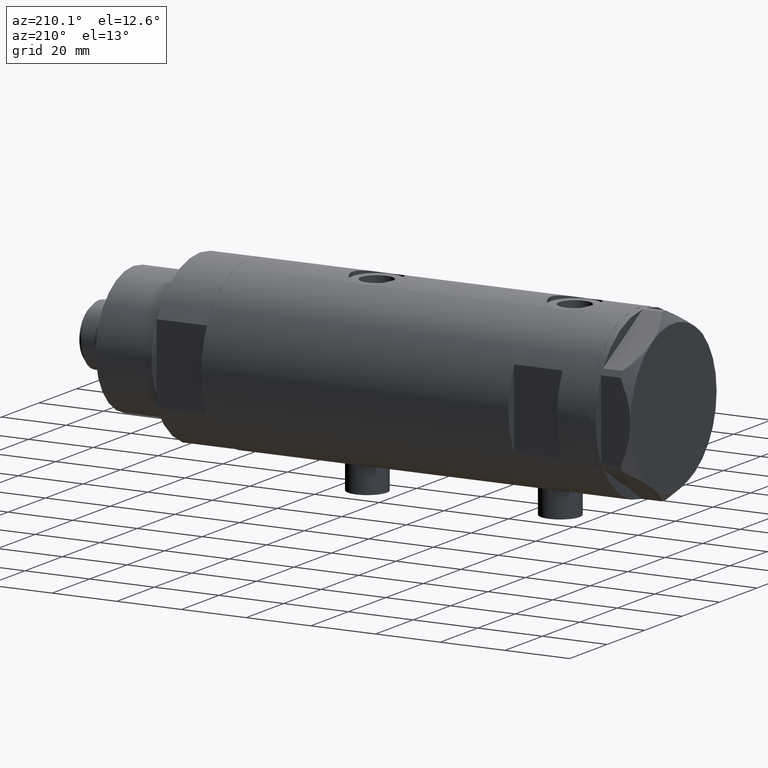
[diagram: clean part render]
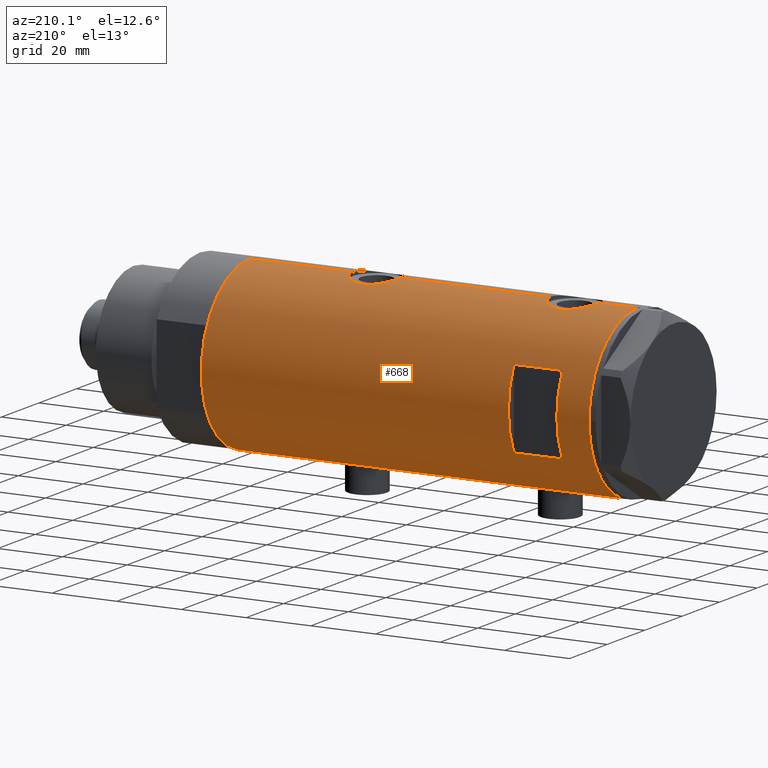
[diagram: same view with one face highlighted and labeled with its STEP entity id]
A machine part, auxiliary view. The second image highlights one B-rep face of the part: STEP entity #668.
In plain terms, the highlighted cylindrical surface (partial cylindrical patch) has radius 26 mm, axis along (-1, -0, 0).
Its self-contained STEP definition (entity closure, byte-faithful):
#34 = CARTESIAN_POINT ( 'NONE',  ( 25.98569222077104257, 0.9879514382926377625, 33.02418153312437710 ) ) ;
#43 = DIRECTION ( 'NONE',  ( 0.000000000000000000, 0.000000000000000000, 1.000000000000000000 ) ) ;
#56 = CARTESIAN_POINT ( 'NONE',  ( -25.81206132723604441, 3.139065735901512166, -29.09478769360875106 ) ) ;
#62 = CARTESIAN_POINT ( 'NONE',  ( -25.57189498399054983, 4.707763994471528157, 40.10590281055547734 ) ) ;
#75 = DIRECTION ( 'NONE',  ( 0.000000000000000000, 0.000000000000000000, 1.000000000000000000 ) ) ;
#76 = EDGE_CURVE ( 'NONE', #4886, #414, #1303, .T. ) ;
#84 = CARTESIAN_POINT ( 'NONE',  ( -25.23757896588369576, 6.250168635417628238, -24.08175308410499937 ) ) ;
#109 = CARTESIAN_POINT ( 'NONE',  ( 25.86510134953876161, 2.654921787384014298, -27.79367061694904351 ) ) ;
#118 = CARTESIAN_POINT ( 'NONE',  ( 12.12435565298213724, 23.00000000000000355, 34.97499999999999432 ) ) ;
#131 = CARTESIAN_POINT ( 'NONE',  ( -25.59680708126579418, 4.563450671387943025, -27.95043949979969966 ) ) ;
#133 = CARTESIAN_POINT ( 'NONE',  ( 25.03487248886524696, 7.018875226450791871, -23.42923217392065283 ) ) ;
#136 = ORIENTED_EDGE ( 'NONE', *, *, #3598, .F. ) ;
#150 = EDGE_CURVE ( 'NONE', #595, #4886, #206, .T. ) ;
#186 = CARTESIAN_POINT ( 'NONE',  ( 25.52465069878074999, 4.952713637311402906, -26.41244860815255890 ) ) ;
#194 = CARTESIAN_POINT ( 'NONE',  ( -25.96182217530153480, 1.422664245316465736, -17.58564726907610165 ) ) ;
#201 = CARTESIAN_POINT ( 'NONE',  ( -25.99009688862344447, 0.8219492608955323298, 42.18415939226576228 ) ) ;
#206 = LINE ( 'NONE', #1798, #3060 ) ;
#214 = CARTESIAN_POINT ( 'NONE',  ( 24.96662810169869928, 7.257932614256870529, -18.82202690473264894 ) ) ;
#250 = CARTESIAN_POINT ( 'NONE',  ( 25.08669247833292459, 6.831361936037322558, -17.66962260596209333 ) ) ;
#262 = CARTESIAN_POINT ( 'NONE',  ( -25.95015815577423268, 1.621168830448742160, 42.01458570439819340 ) ) ;
#275 = LINE ( 'NONE', #3897, #2052 ) ;
#282 = EDGE_CURVE ( 'NONE', #2746, #4491, #1183, .T. ) ;
#296 = EDGE_CURVE ( 'NONE', #2196, #1206, #1306, .T. ) ;
#332 = CARTESIAN_POINT ( 'NONE',  ( -25.27696731428695642, 6.089059008147562402, -22.25083693040518185 ) ) ;
#340 = EDGE_LOOP ( 'NONE', ( #1924, #4804, #1728, #1963 ) ) ;
#355 = CARTESIAN_POINT ( 'NONE',  ( -25.28915991580759837, 6.038390257328908994, -22.04947348853093914 ) ) ;
#359 = CARTESIAN_POINT ( 'NONE',  ( -25.95208098418916265, 1.628413954368971739, 29.92693207829284674 ) ) ;
#394 = AXIS2_PLACEMENT_3D ( 'NONE', #794, #1971, #5165 ) ;
#410 = CARTESIAN_POINT ( 'NONE',  ( -25.85449082491265571, 2.772892880050690234, 30.35890702514678097 ) ) ;
#414 = VERTEX_POINT ( 'NONE', #3395 ) ;
#415 = CARTESIAN_POINT ( 'NONE',  ( 25.72923282622329211, 3.765147152416744802, 33.97014424215291939 ) ) ;
#434 = CARTESIAN_POINT ( 'NONE',  ( -25.57167265924273991, 4.701795585128872190, 31.85223711689965498 ) ) ;
#455 = CARTESIAN_POINT ( 'NONE',  ( -25.72087293759779314, 3.814831448865737773, -28.64238294827857345 ) ) ;
#488 = ORIENTED_EDGE ( 'NONE', *, *, #296, .T. ) ;
#492 = CARTESIAN_POINT ( 'NONE',  ( 25.17636585680005368, 6.493453152855872546, 44.23599249662802180 ) ) ;
#505 = CARTESIAN_POINT ( 'NONE',  ( -25.28673619335056699, 6.048783215285169490, -25.30050990348179951 ) ) ;
#514 = CARTESIAN_POINT ( 'NONE',  ( 25.78922176490237561, 3.335318700939509107, 33.73949431233524621 ) ) ;
#530 = CARTESIAN_POINT ( 'NONE',  ( 25.94484652078418208, 1.709678645892019455, -28.08165346759174241 ) ) ;
#538 = CARTESIAN_POINT ( 'NONE',  ( 25.20855488770172315, 6.367749707222637667, 44.44502223040957745 ) ) ;
#565 = CARTESIAN_POINT ( 'NONE',  ( 25.38117076385347914, 5.641057083563588925, 45.42356579741849032 ) ) ;
#592 = CARTESIAN_POINT ( 'NONE',  ( -26.00000000000001421, 0.4145874687851189844, -17.42500000000000782 ) ) ;
#595 = VERTEX_POINT ( 'NONE', #1913 ) ;
#600 = DIRECTION ( 'NONE',  ( -0.000000000000000000, -0.000000000000000000, 1.000000000000000000 ) ) ;
#613 = CARTESIAN_POINT ( 'NONE',  ( 25.88814720404043968, 2.420758939209242566, -27.87788286828453366 ) ) ;
#623 = CARTESIAN_POINT ( 'NONE',  ( 25.97197502027376004, 1.230965554787593952, 47.87740824498372660 ) ) ;
#642 = CARTESIAN_POINT ( 'NONE',  ( 25.98569222077104968, 0.9879514382926377625, -28.22581846687559803 ) ) ;
#668 = ADVANCED_FACE ( 'NONE', ( #3276, #1701 ), #4467, .T. ) ;
#766 = CARTESIAN_POINT ( 'NONE',  ( -25.99759026373432036, 0.4091325989570627764, 29.73500109955100612 ) ) ;
#784 = CARTESIAN_POINT ( 'NONE',  ( -26.00000000000000355, 3.184081677783118585E-15, -59.97500000000000142 ) ) ;
#786 = DIRECTION ( 'NONE',  ( 1.000000000000000000, 0.000000000000000000, 0.000000000000000000 ) ) ;
#788 = CARTESIAN_POINT ( 'NONE',  ( -25.57189498399055338, 4.707763994471526381, -19.54409718944451058 ) ) ;
#792 = CARTESIAN_POINT ( 'NONE',  ( -25.31518616157687518, 5.930210831981637121, 33.95912882792974585 ) ) ;
#794 = CARTESIAN_POINT ( 'NONE',  ( 0.000000000000000000, 0.000000000000000000, 49.97499999999999432 ) ) ;
#796 = CARTESIAN_POINT ( 'NONE',  ( 25.92799636947105313, 1.948138538329398317, 33.22822312211786056 ) ) ;
#815 = CARTESIAN_POINT ( 'NONE',  ( -25.38675822915649150, 5.615881323213569587, -20.90193218337989478 ) ) ;
#818 = CARTESIAN_POINT ( 'NONE',  ( -25.67176285215958131, 4.128807479817782955, 31.26508401548876748 ) ) ;
#822 = CARTESIAN_POINT ( 'NONE',  ( 25.94484652078419273, 1.709678645892021009, 33.16834653240823627 ) ) ;
#853 = ORIENTED_EDGE ( 'NONE', *, *, #4439, .T. ) ;
#877 = CARTESIAN_POINT ( 'NONE',  ( 25.11550258961939974, 6.725017566862028673, 43.80428477806020027 ) ) ;
#880 = DIRECTION ( 'NONE',  ( 0.000000000000000000, 0.000000000000000000, 1.000000000000000000 ) ) ;
#926 = VECTOR ( 'NONE', #3038, 1000.000000000000000 ) ;
#927 = CARTESIAN_POINT ( 'NONE',  ( 25.89067367629246164, 2.424883365422555670, 47.58905204505168740 ) ) ;
#989 = CARTESIAN_POINT ( 'NONE',  ( 26.00000000000000355, 0.000000000000000000, -59.97500000000000142 ) ) ;
#1013 = CARTESIAN_POINT ( 'NONE',  ( 25.93077501166306575, 1.957027822413552220, 47.73197858562406992 ) ) ;
#1023 = DIRECTION ( 'NONE',  ( -1.000000000000000000, -5.329070518200751394E-15, 0.000000000000000000 ) ) ;
#1117 = CARTESIAN_POINT ( 'NONE',  ( -25.31738333113901973, 5.918941409682880739, -21.65742077527678688 ) ) ;
#1147 = CARTESIAN_POINT ( 'NONE',  ( -25.98789693408479451, 0.8193301824841934256, 29.77551019734653437 ) ) ;
#1168 = ORIENTED_EDGE ( 'NONE', *, *, #3906, .T. ) ;
#1183 = LINE ( 'NONE', #4057, #4832 ) ;
#1193 = CARTESIAN_POINT ( 'NONE',  ( -25.24784248027028966, 6.209126813737960049, 35.15231838311942170 ) ) ;
#1206 = VERTEX_POINT ( 'NONE', #4094 ) ;
#1215 = CARTESIAN_POINT ( 'NONE',  ( -25.81251897318926325, 3.135439098787736967, -18.25300821914827409 ) ) ;
#1219 = CARTESIAN_POINT ( 'NONE',  ( -25.81251897318926325, 3.135439098787739187, 41.39699178085172804 ) ) ;
#1222 = CARTESIAN_POINT ( 'NONE',  ( 25.59528664075984850, 4.573671112500303337, 34.52590496483274762 ) ) ;
#1250 = CARTESIAN_POINT ( 'NONE',  ( 25.01140519645289828, 7.101774040639625696, 38.05107764299177120 ) ) ;
#1273 = CARTESIAN_POINT ( 'NONE',  ( 24.96662810169870284, 7.257932614256869641, 42.42797309526736171 ) ) ;
#1297 = CARTESIAN_POINT ( 'NONE',  ( 25.52465069878074644, 4.952713637311401129, 34.83755139184743399 ) ) ;
#1303 = CIRCLE ( 'NONE', #2559, 26.00000000000000355 ) ;
#1306 = LINE ( 'NONE', #4506, #2802 ) ;
#1309 = CIRCLE ( 'NONE', #394, 26.00000000000000355 ) ;
#1327 = CARTESIAN_POINT ( 'NONE',  ( 24.89471231507667071, 7.500219916954787180, 40.96378226883028617 ) ) ;
#1379 = CARTESIAN_POINT ( 'NONE',  ( 0.000000000000000000, 0.000000000000000000, 59.97500000000000142 ) ) ;
#1382 = CARTESIAN_POINT ( 'NONE',  ( 25.99999999999999645, 0.2455784580650494653, -13.27499999999999503 ) ) ;
#1384 = CARTESIAN_POINT ( 'NONE',  ( -26.00000000000000355, 3.184081677783118585E-15, -59.97500000000000142 ) ) ;
#1396 = CARTESIAN_POINT ( 'NONE',  ( 25.01140519645289118, 7.101774040639621255, -23.19892235700823235 ) ) ;
#1413 = CARTESIAN_POINT ( 'NONE',  ( 26.00000000000000355, -3.975020876488192696E-20, -13.27499999999999503 ) ) ;
#1434 = EDGE_CURVE ( 'NONE', #3150, #4948, #4663, .T. ) ;
#1440 = CARTESIAN_POINT ( 'NONE',  ( 25.41763780493360514, 5.474943943663457269, -15.64323686211065478 ) ) ;
#1455 = CARTESIAN_POINT ( 'NONE',  ( 25.17636585680005723, 6.493453152855876098, -17.01400750337196399 ) ) ;
#1496 = EDGE_CURVE ( 'NONE', #3150, #2477, #3909, .T. ) ;
#1505 = CARTESIAN_POINT ( 'NONE',  ( -25.52242378584898930, 4.965907353613390640, -19.85780397078262283 ) ) ;
#1554 = CARTESIAN_POINT ( 'NONE',  ( -25.43062364804612230, 5.412314182902751902, 32.84272351419069480 ) ) ;
#1570 = B_SPLINE_CURVE_WITH_KNOTS ( 'NONE', 3,
 ( #3803, #1824, #201, #3002, #262, #3391, #3862, #2804, #1219, #2437, #2783, #62, #3625, #2735, #4414, #2034, #4795, #2384, #3167, #3649, #4385, #1627, #1193, #4040, #792, #4359, #1605, #1554, #3574, #1944, #3120, #434, #3197, #818, #3995, #4744, #410, #4018, #359, #2414, #1147, #766, #2011, #5189 ),
 .UNSPECIFIED., .F., .F.,
 ( 4, 2, 2, 2, 2, 2, 2, 2, 2, 2, 2, 2, 2, 2, 2, 2, 2, 2, 2, 2, 2, 4 ),
 ( 2.995929484129288711E-19, 0.001225774033668407693, 0.001838661050502608720, 0.002451548067336810615, 0.003677322101005216573, 0.004903096134673621230, 0.006128870168342027622, 0.007354644202010434013, 0.007967531218844636776, 0.008580418235678838670, 0.009806192269347244195, 0.01103196630301564972, 0.01225774033668405524, 0.01287062735351825887, 0.01348351437035246250, 0.01409640138718666787, 0.01470928840402086976, 0.01593506243768925967, 0.01716083647135764959, 0.01838661050502603950, 0.01899949752186023966, 0.01961238453869443288 ),
 .UNSPECIFIED. ) ;
#1577 = CARTESIAN_POINT ( 'NONE',  ( -25.42927140605241476, 5.422776733968211360, -20.54056003986716661 ) ) ;
#1605 = CARTESIAN_POINT ( 'NONE',  ( -25.38875076695533650, 5.605452563035131952, 33.20314099175893574 ) ) ;
#1606 = CARTESIAN_POINT ( 'NONE',  ( 0.000000000000000000, 0.000000000000000000, -59.97500000000000142 ) ) ;
#1609 = CARTESIAN_POINT ( 'NONE',  ( 25.88814720404043257, 2.420758939209243898, 33.37211713171544147 ) ) ;
#1621 = DIRECTION ( 'NONE',  ( 0.000000000000000000, 0.000000000000000000, 1.000000000000000000 ) ) ;
#1627 = CARTESIAN_POINT ( 'NONE',  ( -25.23757896588370642, 6.250168635417628238, 35.56824691589500276 ) ) ;
#1649 = CARTESIAN_POINT ( 'NONE',  ( -12.12435565298214080, 23.00000000000000355, 49.97499999999999432 ) ) ;
#1660 = CARTESIAN_POINT ( 'NONE',  ( 25.30960479024496834, 5.958491152160524607, 35.89360322320037966 ) ) ;
#1695 = CARTESIAN_POINT ( 'NONE',  ( -25.36894112891958031, 5.694149517195238097, -26.25982505198308559 ) ) ;
#1696 = CARTESIAN_POINT ( 'NONE',  ( 24.97016856345952363, 7.245430721349214842, -22.72803040919390938 ) ) ;
#1701 = FACE_OUTER_BOUND ( 'NONE', #3861, .T. ) ;
#1723 = CARTESIAN_POINT ( 'NONE',  ( 24.89484527721568696, 7.499778575171894168, -21.27050805482937079 ) ) ;
#1728 = ORIENTED_EDGE ( 'NONE', *, *, #2550, .F. ) ;
#1740 = DIRECTION ( 'NONE',  ( 0.000000000000000000, 0.000000000000000000, 1.000000000000000000 ) ) ;
#1749 = CARTESIAN_POINT ( 'NONE',  ( -25.98789693408479451, 0.8193301824841945358, -29.87448980265348553 ) ) ;
#1755 = CARTESIAN_POINT ( 'NONE',  ( 25.31017500740586357, 5.951503630041860227, 45.04549592637403777 ) ) ;
#1758 = CARTESIAN_POINT ( 'NONE',  ( -26.00000000000000355, -3.084505892914045137E-16, 42.22500000000000142 ) ) ;
#1779 = CARTESIAN_POINT ( 'NONE',  ( 25.48882460966380492, 5.133289275481216940, -26.24843523597908401 ) ) ;
#1785 = CARTESIAN_POINT ( 'NONE',  ( -25.95015815577422202, 1.621168830448741494, -17.63541429560180873 ) ) ;
#1790 = DIRECTION ( 'NONE',  ( 0.000000000000000000, 0.000000000000000000, 1.000000000000000000 ) ) ;
#1798 = CARTESIAN_POINT ( 'NONE',  ( 12.12435565298214080, 23.00000000000000355, -59.97500000000000142 ) ) ;
#1817 = AXIS2_PLACEMENT_3D ( 'NONE', #5184, #1621, #786 ) ;
#1824 = CARTESIAN_POINT ( 'NONE',  ( -26.00000000000001421, 0.4145874687851189289, 42.22500000000000853 ) ) ;
#1835 = ORIENTED_EDGE ( 'NONE', *, *, #2772, .F. ) ;
#1838 = CARTESIAN_POINT ( 'NONE',  ( 25.20855488770172670, 6.367749707222640332, -16.80497776959043321 ) ) ;
#1845 = CARTESIAN_POINT ( 'NONE',  ( 26.00000000000000355, -3.975025925197986111E-20, 47.97499999999999432 ) ) ;
#1850 = CARTESIAN_POINT ( 'NONE',  ( 25.97197502027376714, 1.230965554787593064, -13.37259175501624853 ) ) ;
#1892 = AXIS2_PLACEMENT_3D ( 'NONE', #1606, #3198, #4068 ) ;
#1913 = CARTESIAN_POINT ( 'NONE',  ( 12.12435565298214080, 23.00000000000000355, 49.97499999999999432 ) ) ;
#1924 = ORIENTED_EDGE ( 'NONE', *, *, #76, .F. ) ;
#1944 = CARTESIAN_POINT ( 'NONE',  ( -25.49884629689154281, 5.081547904122036385, 32.33060194303910606 ) ) ;
#1963 = ORIENTED_EDGE ( 'NONE', *, *, #4114, .F. ) ;
#1971 = DIRECTION ( 'NONE',  ( -0.000000000000000000, -0.000000000000000000, -1.000000000000000000 ) ) ;
#1974 = VECTOR ( 'NONE', #3356, 1000.000000000000000 ) ;
#2007 = CARTESIAN_POINT ( 'NONE',  ( -25.38875076695535071, 5.605452563035137281, -26.44685900824105929 ) ) ;
#2011 = CARTESIAN_POINT ( 'NONE',  ( -26.00000000000000000, 0.2043916521038992851, 29.72500000000000142 ) ) ;
#2034 = CARTESIAN_POINT ( 'NONE',  ( -25.33346170681504006, 5.849967696906719361, 38.18447052099507033 ) ) ;
#2052 = VECTOR ( 'NONE', #3043, 1000.000000000000000 ) ;
#2092 = CARTESIAN_POINT ( 'NONE',  ( 24.97016856345953073, 7.245430721349219283, 38.52196959080608707 ) ) ;
#2099 = CARTESIAN_POINT ( 'NONE',  ( 26.00000000000000355, 0.000000000000000000, 59.97500000000000142 ) ) ;
#2108 = CARTESIAN_POINT ( 'NONE',  ( 25.78922176490238272, 3.335318700939509107, -27.51050568766475379 ) ) ;
#2113 = B_SPLINE_CURVE_WITH_KNOTS ( 'NONE', 3,
 ( #4911, #4099, #34, #822, #796, #1609, #4856, #514, #415, #4883, #1222, #1297, #4444, #4936, #1660, #3201, #2809, #4420, #1250, #2092, #4022, #3252, #2837, #1327, #2916, #1273, #4471, #3628, #877, #492, #538, #2206, #1755, #565, #3825, #2585, #4181, #3795, #3333, #927, #1013, #623, #2232, #3857, #2527, #1845 ),
 .UNSPECIFIED., .F., .F.,
 ( 4, 2, 2, 2, 2, 2, 2, 2, 2, 2, 2, 2, 2, 2, 2, 2, 2, 2, 2, 2, 2, 2, 4 ),
 ( 2.323866739619147150E-19, 0.001473395154583068958, 0.002210092731874605497, 0.002946790309166141819, 0.004420185463749206657, 0.005156883041040739510, 0.005893580618332274097, 0.007366975772915325057, 0.008840370927498376885, 0.009577068504789901932, 0.01031376608208142698, 0.01178716123666447707, 0.01326055639124752716, 0.01473395154583057726, 0.01547064912312210404, 0.01620734670041363082, 0.01694404427770515587, 0.01768074185499668438, 0.01915413700957973447, 0.02062753216416278457, 0.02210092731874583813, 0.02283762489603735971, 0.02357432247332888128 ),
 .UNSPECIFIED. ) ;
#2140 = CARTESIAN_POINT ( 'NONE',  ( -25.98057228346870673, 1.024901789261883467, -29.84380585854827572 ) ) ;
#2152 = CARTESIAN_POINT ( 'NONE',  ( -26.00000000000000355, 3.184077527325983904E-15, 29.72499999999999787 ) ) ;
#2169 = CARTESIAN_POINT ( 'NONE',  ( -25.99009688862344447, 0.8219492608955327739, -17.46584060773424341 ) ) ;
#2196 = VERTEX_POINT ( 'NONE', #1758 ) ;
#2203 = EDGE_CURVE ( 'NONE', #4491, #1206, #4670, .T. ) ;
#2206 = CARTESIAN_POINT ( 'NONE',  ( 25.27545867390325185, 6.096774941222090405, 44.84977406957966650 ) ) ;
#2226 = CARTESIAN_POINT ( 'NONE',  ( 25.30960479024495768, 5.958491152160520166, -25.35639677679962389 ) ) ;
#2232 = CARTESIAN_POINT ( 'NONE',  ( 25.98255381630415428, 0.9836221648041301169, 47.91433098058191575 ) ) ;
#2249 = EDGE_CURVE ( 'NONE', #3092, #2257, #3769, .T. ) ;
#2257 = VERTEX_POINT ( 'NONE', #3738 ) ;
#2321 = CARTESIAN_POINT ( 'NONE',  ( -26.00000000000001066, 0.2043916521038990075, -29.92500000000001847 ) ) ;
#2358 = CARTESIAN_POINT ( 'NONE',  ( -25.72105193281916513, 3.813738527046909077, -18.70666308900567643 ) ) ;
#2381 = CARTESIAN_POINT ( 'NONE',  ( -26.00000000000000355, 9.891741702313250758E-16, -17.42500000000000071 ) ) ;
#2384 = CARTESIAN_POINT ( 'NONE',  ( -25.28915991580759481, 6.038390257328910771, 37.60052651146904878 ) ) ;
#2391 = ORIENTED_EDGE ( 'NONE', *, *, #2203, .F. ) ;
#2414 = CARTESIAN_POINT ( 'NONE',  ( -25.98057228346869962, 1.024901789261875917, 29.80619414145172996 ) ) ;
#2432 = CARTESIAN_POINT ( 'NONE',  ( -25.31518616157688584, 5.930210831981641562, -25.69087117207025628 ) ) ;
#2437 = CARTESIAN_POINT ( 'NONE',  ( -25.72105193281916868, 3.813738527046911297, 40.94333691099430439 ) ) ;
#2461 = CARTESIAN_POINT ( 'NONE',  ( -25.45277932469922177, 5.307477387851101902, -26.98172800165311003 ) ) ;
#2477 = VERTEX_POINT ( 'NONE', #4214 ) ;
#2519 = CARTESIAN_POINT ( 'NONE',  ( 26.00000000000001066, 0.4983968644076019472, -28.27500000000000213 ) ) ;
#2527 = CARTESIAN_POINT ( 'NONE',  ( 25.99999999999999645, 0.2455784580650500204, 47.97499999999998721 ) ) ;
#2550 = EDGE_CURVE ( 'NONE', #3913, #595, #1309, .T. ) ;
#2557 = CARTESIAN_POINT ( 'NONE',  ( 25.38117076385348625, 5.641057083563590702, -15.82643420258151146 ) ) ;
#2559 = AXIS2_PLACEMENT_3D ( 'NONE', #4615, #600, #1023 ) ;
#2585 = CARTESIAN_POINT ( 'NONE',  ( 25.52590365620542912, 4.955152228772151446, 46.12623727588238154 ) ) ;
#2601 = CARTESIAN_POINT ( 'NONE',  ( 25.59528664075984494, 4.573671112500301561, -26.72409503516725948 ) ) ;
#2616 = CARTESIAN_POINT ( 'NONE',  ( 25.72868876879096689, 3.768709330223693144, -14.27232513129933977 ) ) ;
#2646 = ORIENTED_EDGE ( 'NONE', *, *, #1434, .T. ) ;
#2707 = CARTESIAN_POINT ( 'NONE',  ( 26.00000000000000355, 2.393127611988522640E-16, 32.97499999999999432 ) ) ;
#2720 = ORIENTED_EDGE ( 'NONE', *, *, #2249, .F. ) ;
#2735 = CARTESIAN_POINT ( 'NONE',  ( -25.42927140605240766, 5.422776733968213136, 39.10943996013281776 ) ) ;
#2746 = VERTEX_POINT ( 'NONE', #4315 ) ;
#2759 = CARTESIAN_POINT ( 'NONE',  ( -25.85406084573622465, 2.777003695811654183, -18.06087158673904369 ) ) ;
#2772 = EDGE_CURVE ( 'NONE', #5006, #2746, #2113, .T. ) ;
#2783 = CARTESIAN_POINT ( 'NONE',  ( -25.67095236150574067, 4.133649689219792478, 40.68035228274258230 ) ) ;
#2794 = ORIENTED_EDGE ( 'NONE', *, *, #1496, .F. ) ;
#2802 = VECTOR ( 'NONE', #43, 1000.000000000000000 ) ;
#2804 = CARTESIAN_POINT ( 'NONE',  ( -25.85406084573621754, 2.777003695811655959, 41.58912841326096554 ) ) ;
#2809 = CARTESIAN_POINT ( 'NONE',  ( 25.11254978876589661, 6.737777305585160192, 37.14474648253588640 ) ) ;
#2828 = CARTESIAN_POINT ( 'NONE',  ( -25.49884629689154991, 5.081547904122039938, -27.31939805696090673 ) ) ;
#2837 = CARTESIAN_POINT ( 'NONE',  ( 24.89484527721569762, 7.499778575171895945, 39.97949194517063631 ) ) ;
#2901 = VECTOR ( 'NONE', #1790, 1000.000000000000000 ) ;
#2907 = CARTESIAN_POINT ( 'NONE',  ( -25.43062364804612940, 5.412314182902756343, -26.80727648580931799 ) ) ;
#2916 = CARTESIAN_POINT ( 'NONE',  ( 24.90976107960111818, 7.450765568638821890, 41.46382869351464961 ) ) ;
#2930 = CARTESIAN_POINT ( 'NONE',  ( -25.24784248027028966, 6.209126813737960049, -24.49768161688057333 ) ) ;
#2958 = CARTESIAN_POINT ( 'NONE',  ( 25.63006864069251023, 4.375159448492144776, -26.87154411758883299 ) ) ;
#2987 = CARTESIAN_POINT ( 'NONE',  ( 24.95233689475078620, 7.306396477445175286, -22.48603813146665331 ) ) ;
#3002 = CARTESIAN_POINT ( 'NONE',  ( -25.96182217530153835, 1.422664245316465514, 42.06435273092390759 ) ) ;
#3015 = CARTESIAN_POINT ( 'NONE',  ( 25.38132706741445688, 5.649034551923786118, -25.73231952814044021 ) ) ;
#3029 = CARTESIAN_POINT ( 'NONE',  ( 25.99652140603930306, 0.4914164889130520075, -13.28703179519541067 ) ) ;
#3038 = DIRECTION ( 'NONE',  ( 0.000000000000000000, 0.000000000000000000, 1.000000000000000000 ) ) ;
#3043 = DIRECTION ( 'NONE',  ( 0.000000000000000000, 0.000000000000000000, 1.000000000000000000 ) ) ;
#3060 = VECTOR ( 'NONE', #4619, 1000.000000000000000 ) ;
#3062 = LINE ( 'NONE', #3086, #926 ) ;
#3086 = CARTESIAN_POINT ( 'NONE',  ( -12.12435565298214080, 23.00000000000000355, -59.97500000000000142 ) ) ;
#3092 = VERTEX_POINT ( 'NONE', #3599 ) ;
#3120 = CARTESIAN_POINT ( 'NONE',  ( -25.52275868012767646, 4.960454986366447550, 32.16738370593367335 ) ) ;
#3143 = CARTESIAN_POINT ( 'NONE',  ( -25.92257874449350652, 2.014648337067150408, -17.75503581636323958 ) ) ;
#3150 = VERTEX_POINT ( 'NONE', #2381 ) ;
#3167 = CARTESIAN_POINT ( 'NONE',  ( -25.27696731428695642, 6.089059008147561514, 37.39916306959479186 ) ) ;
#3197 = CARTESIAN_POINT ( 'NONE',  ( -25.59680708126579063, 4.563450671387937696, 31.69956050020029181 ) ) ;
#3198 = DIRECTION ( 'NONE',  ( 0.000000000000000000, 0.000000000000000000, 1.000000000000000000 ) ) ;
#3201 = CARTESIAN_POINT ( 'NONE',  ( 25.17424625143662453, 6.506691718592097828, 36.71258373966273325 ) ) ;
#3215 = CARTESIAN_POINT ( 'NONE',  ( -25.67176285215957421, 4.128807479817788284, -28.38491598451123110 ) ) ;
#3243 = CARTESIAN_POINT ( 'NONE',  ( -25.85449082491263439, 2.772892880050692455, -29.29109297485322472 ) ) ;
#3252 = CARTESIAN_POINT ( 'NONE',  ( 24.90951684770588059, 7.451587374037537792, 39.49104395478803298 ) ) ;
#3276 = FACE_BOUND ( 'NONE', #340, .T. ) ;
#3289 = EDGE_CURVE ( 'NONE', #2257, #3982, #3512, .T. ) ;
#3333 = CARTESIAN_POINT ( 'NONE',  ( 25.78997056644825392, 3.329333406239039839, 47.21334808433847741 ) ) ;
#3356 = DIRECTION ( 'NONE',  ( 0.000000000000000000, 0.000000000000000000, 1.000000000000000000 ) ) ;
#3365 = CARTESIAN_POINT ( 'NONE',  ( 25.59685363299823280, 4.579266302355748941, -14.81527931897347194 ) ) ;
#3379 = CARTESIAN_POINT ( 'NONE',  ( 25.92799636947105668, 1.948138538329396541, -28.02177687788213944 ) ) ;
#3391 = CARTESIAN_POINT ( 'NONE',  ( -25.92257874449351363, 2.014648337067149964, 41.89496418363676611 ) ) ;
#3395 = CARTESIAN_POINT ( 'NONE',  ( -12.12435565298214080, 23.00000000000000355, 34.97499999999999432 ) ) ;
#3424 = CARTESIAN_POINT ( 'NONE',  ( 25.31017500740585646, 5.951503630041861115, -16.20450407362597645 ) ) ;
#3434 = CARTESIAN_POINT ( 'NONE',  ( 25.00820649268565532, 7.115348876445588999, -18.35315999524548758 ) ) ;
#3437 = EDGE_CURVE ( 'NONE', #2196, #4948, #1570, .T. ) ;
#3495 = CARTESIAN_POINT ( 'NONE',  ( -25.67095236150574067, 4.133649689219789813, -18.96964771725741628 ) ) ;
#3512 = B_SPLINE_CURVE_WITH_KNOTS ( 'NONE', 3,
 ( #3817, #2519, #642, #530, #3379, #613, #109, #2108, #4978, #2958, #2601, #186, #1779, #3015, #2226, #5003, #3722, #133, #1396, #1696, #2987, #5033, #1723, #4598, #4199, #214, #3434, #250, #5059, #1455, #1838, #3851, #3424, #2557, #1440, #4991, #3365, #2616, #4554, #5073, #4217, #1850, #4614, #3029, #1382, #1413 ),
 .UNSPECIFIED., .F., .F.,
 ( 4, 2, 2, 2, 2, 2, 2, 2, 2, 2, 2, 2, 2, 2, 2, 2, 2, 2, 2, 2, 2, 2, 4 ),
 ( 3.252176863656678460E-19, 0.001473395154583063971, 0.002210092731874595956, 0.002946790309166127074, 0.004420185463749194514, 0.005156883041040730836, 0.005893580618332268026, 0.007366975772915335466, 0.008840370927498404641, 0.009577068504789931422, 0.01031376608208146167, 0.01178716123666451003, 0.01326055639124755839, 0.01473395154583060501, 0.01547064912312212485, 0.01620734670041364470, 0.01694404427770516280, 0.01768074185499668091, 0.01915413700957972407, 0.02062753216416277416, 0.02210092731874582078, 0.02283762489603734583, 0.02357432247332886741 ),
 .UNSPECIFIED. ) ;
#3521 = CARTESIAN_POINT ( 'NONE',  ( -25.24766879991036816, 6.209837761082655838, -22.85650430970305180 ) ) ;
#3574 = CARTESIAN_POINT ( 'NONE',  ( -25.45277932469921467, 5.307477387851095685, 32.66827199834688855 ) ) ;
#3587 = ORIENTED_EDGE ( 'NONE', *, *, #282, .F. ) ;
#3598 = EDGE_CURVE ( 'NONE', #3982, #5006, #275, .T. ) ;
#3599 = CARTESIAN_POINT ( 'NONE',  ( 26.00000000000000355, 0.000000000000000000, -59.97500000000000142 ) ) ;
#3625 = CARTESIAN_POINT ( 'NONE',  ( -25.52242378584899285, 4.965907353613394193, 39.79219602921737220 ) ) ;
#3628 = CARTESIAN_POINT ( 'NONE',  ( 25.08669247833291394, 6.831361936037319893, 43.58037739403789601 ) ) ;
#3649 = CARTESIAN_POINT ( 'NONE',  ( -25.24766879991036461, 6.209837761082652285, 36.79349569029695743 ) ) ;
#3722 = CARTESIAN_POINT ( 'NONE',  ( 25.11254978876590727, 6.737777305585158416, -24.10525351746412426 ) ) ;
#3731 = ORIENTED_EDGE ( 'NONE', *, *, #3437, .F. ) ;
#3736 = AXIS2_PLACEMENT_3D ( 'NONE', #1379, #880, #4080 ) ;
#3738 = CARTESIAN_POINT ( 'NONE',  ( 26.00000000000000355, 3.349105230002364782E-16, -28.27499999999999503 ) ) ;
#3751 = CIRCLE ( 'NONE', #1817, 26.00000000000000355 ) ;
#3769 = LINE ( 'NONE', #989, #2901 ) ;
#3795 = CARTESIAN_POINT ( 'NONE',  ( 25.72868876879096689, 3.768709330223694920, 46.97767486870067444 ) ) ;
#3803 = CARTESIAN_POINT ( 'NONE',  ( -26.00000000000000355, -3.084505892914045137E-16, 42.22500000000000142 ) ) ;
#3817 = CARTESIAN_POINT ( 'NONE',  ( 26.00000000000000355, 3.349105230002364782E-16, -28.27499999999999503 ) ) ;
#3825 = CARTESIAN_POINT ( 'NONE',  ( 25.41763780493359803, 5.474943943663455492, 45.60676313788934522 ) ) ;
#3851 = CARTESIAN_POINT ( 'NONE',  ( 25.27545867390324474, 6.096774941222093069, -16.40022593042034060 ) ) ;
#3857 = CARTESIAN_POINT ( 'NONE',  ( 25.99652140603931016, 0.4914164889130518965, 47.96296820480456802 ) ) ;
#3861 = EDGE_LOOP ( 'NONE', ( #1168, #853, #2794, #2646, #3731, #488, #2391, #3587, #1835, #136, #4754, #2720 ) ) ;
#3862 = CARTESIAN_POINT ( 'NONE',  ( -25.90661719257678541, 2.209805098346975694, 41.82488745781520123 ) ) ;
#3897 = CARTESIAN_POINT ( 'NONE',  ( 26.00000000000000355, 0.000000000000000000, -59.97500000000000142 ) ) ;
#3906 = EDGE_CURVE ( 'NONE', #3092, #5146, #3751, .T. ) ;
#3909 = B_SPLINE_CURVE_WITH_KNOTS ( 'NONE', 3,
 ( #4693, #592, #2169, #194, #1785, #3143, #3947, #2759, #1215, #2358, #3495, #788, #1505, #1577, #815, #3991, #1117, #355, #332, #3521, #5134, #84, #2930, #505, #2432, #1695, #2007, #2907, #2461, #2828, #4513, #4116, #131, #3215, #455, #56, #3243, #4874, #4658, #2140, #1749, #4321, #2321, #4198 ),
 .UNSPECIFIED., .F., .F.,
 ( 4, 2, 2, 2, 2, 2, 2, 2, 2, 2, 2, 2, 2, 2, 2, 2, 2, 2, 2, 2, 2, 4 ),
 ( 9.607684875373755967E-19, 0.001225774033668397284, 0.001838661050502595710, 0.002451548067336793268, 0.003677322101005185782, 0.004903096134673576995, 0.006128870168341967774, 0.007354644202010358553, 0.007967531218844556978, 0.008580418235678757138, 0.009806192269347166132, 0.01103196630301557513, 0.01225774033668398239, 0.01287062735351818775, 0.01348351437035239311, 0.01409640138718659848, 0.01470928840402080211, 0.01593506243768920416, 0.01716083647135761142, 0.01838661050502601521, 0.01899949752186022231, 0.01961238453869442594 ),
 .UNSPECIFIED. ) ;
#3913 = VERTEX_POINT ( 'NONE', #1649 ) ;
#3947 = CARTESIAN_POINT ( 'NONE',  ( -25.90661719257678897, 2.209805098346973917, -17.82511254218479735 ) ) ;
#3982 = VERTEX_POINT ( 'NONE', #4870 ) ;
#3991 = CARTESIAN_POINT ( 'NONE',  ( -25.33346170681505072, 5.849967696906717585, -21.46552947900493180 ) ) ;
#3995 = CARTESIAN_POINT ( 'NONE',  ( -25.72087293759780380, 3.814831448865736441, 31.00761705172141802 ) ) ;
#4018 = CARTESIAN_POINT ( 'NONE',  ( -25.92432690655987315, 2.018143994254071760, 30.04570577177285529 ) ) ;
#4022 = CARTESIAN_POINT ( 'NONE',  ( 24.95233689475078975, 7.306396477445178839, 38.76396186853335735 ) ) ;
#4040 = CARTESIAN_POINT ( 'NONE',  ( -25.28673619335055989, 6.048783215285167714, 34.34949009651820262 ) ) ;
#4057 = CARTESIAN_POINT ( 'NONE',  ( 26.00000000000000355, 0.000000000000000000, -59.97500000000000142 ) ) ;
#4068 = DIRECTION ( 'NONE',  ( 1.000000000000000000, 0.000000000000000000, 0.000000000000000000 ) ) ;
#4080 = DIRECTION ( 'NONE',  ( 1.000000000000000000, 0.000000000000000000, 0.000000000000000000 ) ) ;
#4094 = CARTESIAN_POINT ( 'NONE',  ( -26.00000000000000355, 3.184081677783118585E-15, 59.97500000000000142 ) ) ;
#4099 = CARTESIAN_POINT ( 'NONE',  ( 26.00000000000000355, 0.4983968644076020582, 32.97499999999998721 ) ) ;
#4105 = LINE ( 'NONE', #1384, #4546 ) ;
#4114 = EDGE_CURVE ( 'NONE', #414, #3913, #3062, .T. ) ;
#4116 = CARTESIAN_POINT ( 'NONE',  ( -25.57167265924275057, 4.701795585128877519, -27.79776288310032228 ) ) ;
#4181 = CARTESIAN_POINT ( 'NONE',  ( 25.59685363299823280, 4.579266302355747165, 46.43472068102654760 ) ) ;
#4198 = CARTESIAN_POINT ( 'NONE',  ( -26.00000000000000355, 3.184077527325983904E-15, -29.92500000000000426 ) ) ;
#4199 = CARTESIAN_POINT ( 'NONE',  ( 24.90976107960111818, 7.450765568638822778, -19.78617130648535039 ) ) ;
#4214 = CARTESIAN_POINT ( 'NONE',  ( -26.00000000000000355, 3.184077527325983904E-15, -29.92500000000000426 ) ) ;
#4217 = CARTESIAN_POINT ( 'NONE',  ( 25.93077501166307286, 1.957027822413545337, -13.51802141437590166 ) ) ;
#4315 = CARTESIAN_POINT ( 'NONE',  ( 26.00000000000000355, -3.975025925197986111E-20, 47.97499999999999432 ) ) ;
#4321 = CARTESIAN_POINT ( 'NONE',  ( -25.99759026373433457, 0.4091325989570647192, -29.91499890044899956 ) ) ;
#4359 = CARTESIAN_POINT ( 'NONE',  ( -25.36894112891956965, 5.694149517195234544, 33.39017494801692010 ) ) ;
#4385 = CARTESIAN_POINT ( 'NONE',  ( -25.23766275406408965, 6.249830297096024445, 36.38691904555117418 ) ) ;
#4414 = CARTESIAN_POINT ( 'NONE',  ( -25.38675822915648794, 5.615881323213569587, 38.74806781662010025 ) ) ;
#4420 = CARTESIAN_POINT ( 'NONE',  ( 25.03487248886524696, 7.018875226450792759, 37.82076782607936849 ) ) ;
#4439 = EDGE_CURVE ( 'NONE', #5146, #2477, #4105, .T. ) ;
#4444 = CARTESIAN_POINT ( 'NONE',  ( 25.48882460966379782, 5.133289275481216940, 35.00156476402090533 ) ) ;
#4467 = CYLINDRICAL_SURFACE ( 'NONE', #1892, 26.00000000000000355 ) ;
#4471 = CARTESIAN_POINT ( 'NONE',  ( 25.00820649268565887, 7.115348876445586335, 42.89684000475450887 ) ) ;
#4491 = VERTEX_POINT ( 'NONE', #2099 ) ;
#4506 = CARTESIAN_POINT ( 'NONE',  ( -26.00000000000000355, 3.184081677783118585E-15, -59.97500000000000142 ) ) ;
#4513 = CARTESIAN_POINT ( 'NONE',  ( -25.52275868012768001, 4.960454986366453767, -27.48261629406632878 ) ) ;
#4546 = VECTOR ( 'NONE', #1740, 1000.000000000000000 ) ;
#4554 = CARTESIAN_POINT ( 'NONE',  ( 25.78997056644824681, 3.329333406239041615, -14.03665191566152792 ) ) ;
#4571 = CARTESIAN_POINT ( 'NONE',  ( -26.00000000000000355, 3.184081677783118585E-15, -59.97500000000000142 ) ) ;
#4598 = CARTESIAN_POINT ( 'NONE',  ( 24.89471231507667426, 7.500219916954789845, -20.28621773116971738 ) ) ;
#4614 = CARTESIAN_POINT ( 'NONE',  ( 25.98255381630416494, 0.9836221648041295618, -13.33566901941807714 ) ) ;
#4615 = CARTESIAN_POINT ( 'NONE',  ( 0.000000000000000000, 0.000000000000000000, 34.97499999999999432 ) ) ;
#4619 = DIRECTION ( 'NONE',  ( -0.000000000000000000, -0.000000000000000000, -1.000000000000000000 ) ) ;
#4658 = CARTESIAN_POINT ( 'NONE',  ( -25.95208098418916620, 1.628413954368980621, -29.72306792170715184 ) ) ;
#4663 = LINE ( 'NONE', #4571, #1974 ) ;
#4670 = CIRCLE ( 'NONE', #3736, 26.00000000000000355 ) ;
#4693 = CARTESIAN_POINT ( 'NONE',  ( -26.00000000000000355, 9.891741702313250758E-16, -17.42500000000000071 ) ) ;
#4744 = CARTESIAN_POINT ( 'NONE',  ( -25.81206132723605862, 3.139065735901511278, 30.55521230639125108 ) ) ;
#4754 = ORIENTED_EDGE ( 'NONE', *, *, #3289, .F. ) ;
#4795 = CARTESIAN_POINT ( 'NONE',  ( -25.31738333113901263, 5.918941409682878962, 37.99257922472322946 ) ) ;
#4804 = ORIENTED_EDGE ( 'NONE', *, *, #150, .F. ) ;
#4832 = VECTOR ( 'NONE', #75, 1000.000000000000000 ) ;
#4856 = CARTESIAN_POINT ( 'NONE',  ( 25.86510134953875450, 2.654921787384014298, 33.45632938305095649 ) ) ;
#4870 = CARTESIAN_POINT ( 'NONE',  ( 26.00000000000000355, -3.975020876488192696E-20, -13.27499999999999503 ) ) ;
#4874 = CARTESIAN_POINT ( 'NONE',  ( -25.92432690655987670, 2.018143994254077978, -29.60429422822715395 ) ) ;
#4883 = CARTESIAN_POINT ( 'NONE',  ( 25.63006864069250668, 4.375159448492148329, 34.37845588241117412 ) ) ;
#4886 = VERTEX_POINT ( 'NONE', #118 ) ;
#4911 = CARTESIAN_POINT ( 'NONE',  ( 26.00000000000000355, 2.393127611988522640E-16, 32.97499999999999432 ) ) ;
#4936 = CARTESIAN_POINT ( 'NONE',  ( 25.38132706741445688, 5.649034551923787895, 35.51768047185955623 ) ) ;
#4948 = VERTEX_POINT ( 'NONE', #2152 ) ;
#4978 = CARTESIAN_POINT ( 'NONE',  ( 25.72923282622329566, 3.765147152416743026, -27.27985575784708061 ) ) ;
#4991 = CARTESIAN_POINT ( 'NONE',  ( 25.52590365620543267, 4.955152228772147893, -15.12376272411761491 ) ) ;
#5003 = CARTESIAN_POINT ( 'NONE',  ( 25.17424625143662809, 6.506691718592098717, -24.53741626033726675 ) ) ;
#5006 = VERTEX_POINT ( 'NONE', #2707 ) ;
#5033 = CARTESIAN_POINT ( 'NONE',  ( 24.90951684770587704, 7.451587374037532463, -21.75895604521196702 ) ) ;
#5059 = CARTESIAN_POINT ( 'NONE',  ( 25.11550258961940330, 6.725017566862031337, -17.44571522193979618 ) ) ;
#5073 = CARTESIAN_POINT ( 'NONE',  ( 25.89067367629246164, 2.424883365422556114, -13.66094795494830727 ) ) ;
#5134 = CARTESIAN_POINT ( 'NONE',  ( -25.23766275406409676, 6.249830297096026221, -23.26308095444882440 ) ) ;
#5146 = VERTEX_POINT ( 'NONE', #784 ) ;
#5165 = DIRECTION ( 'NONE',  ( 1.000000000000000000, -5.329070518200751394E-15, 0.000000000000000000 ) ) ;
#5184 = CARTESIAN_POINT ( 'NONE',  ( 0.000000000000000000, 0.000000000000000000, -59.97500000000000142 ) ) ;
#5189 = CARTESIAN_POINT ( 'NONE',  ( -26.00000000000000355, 3.184077527325983904E-15, 29.72499999999999787 ) ) ;